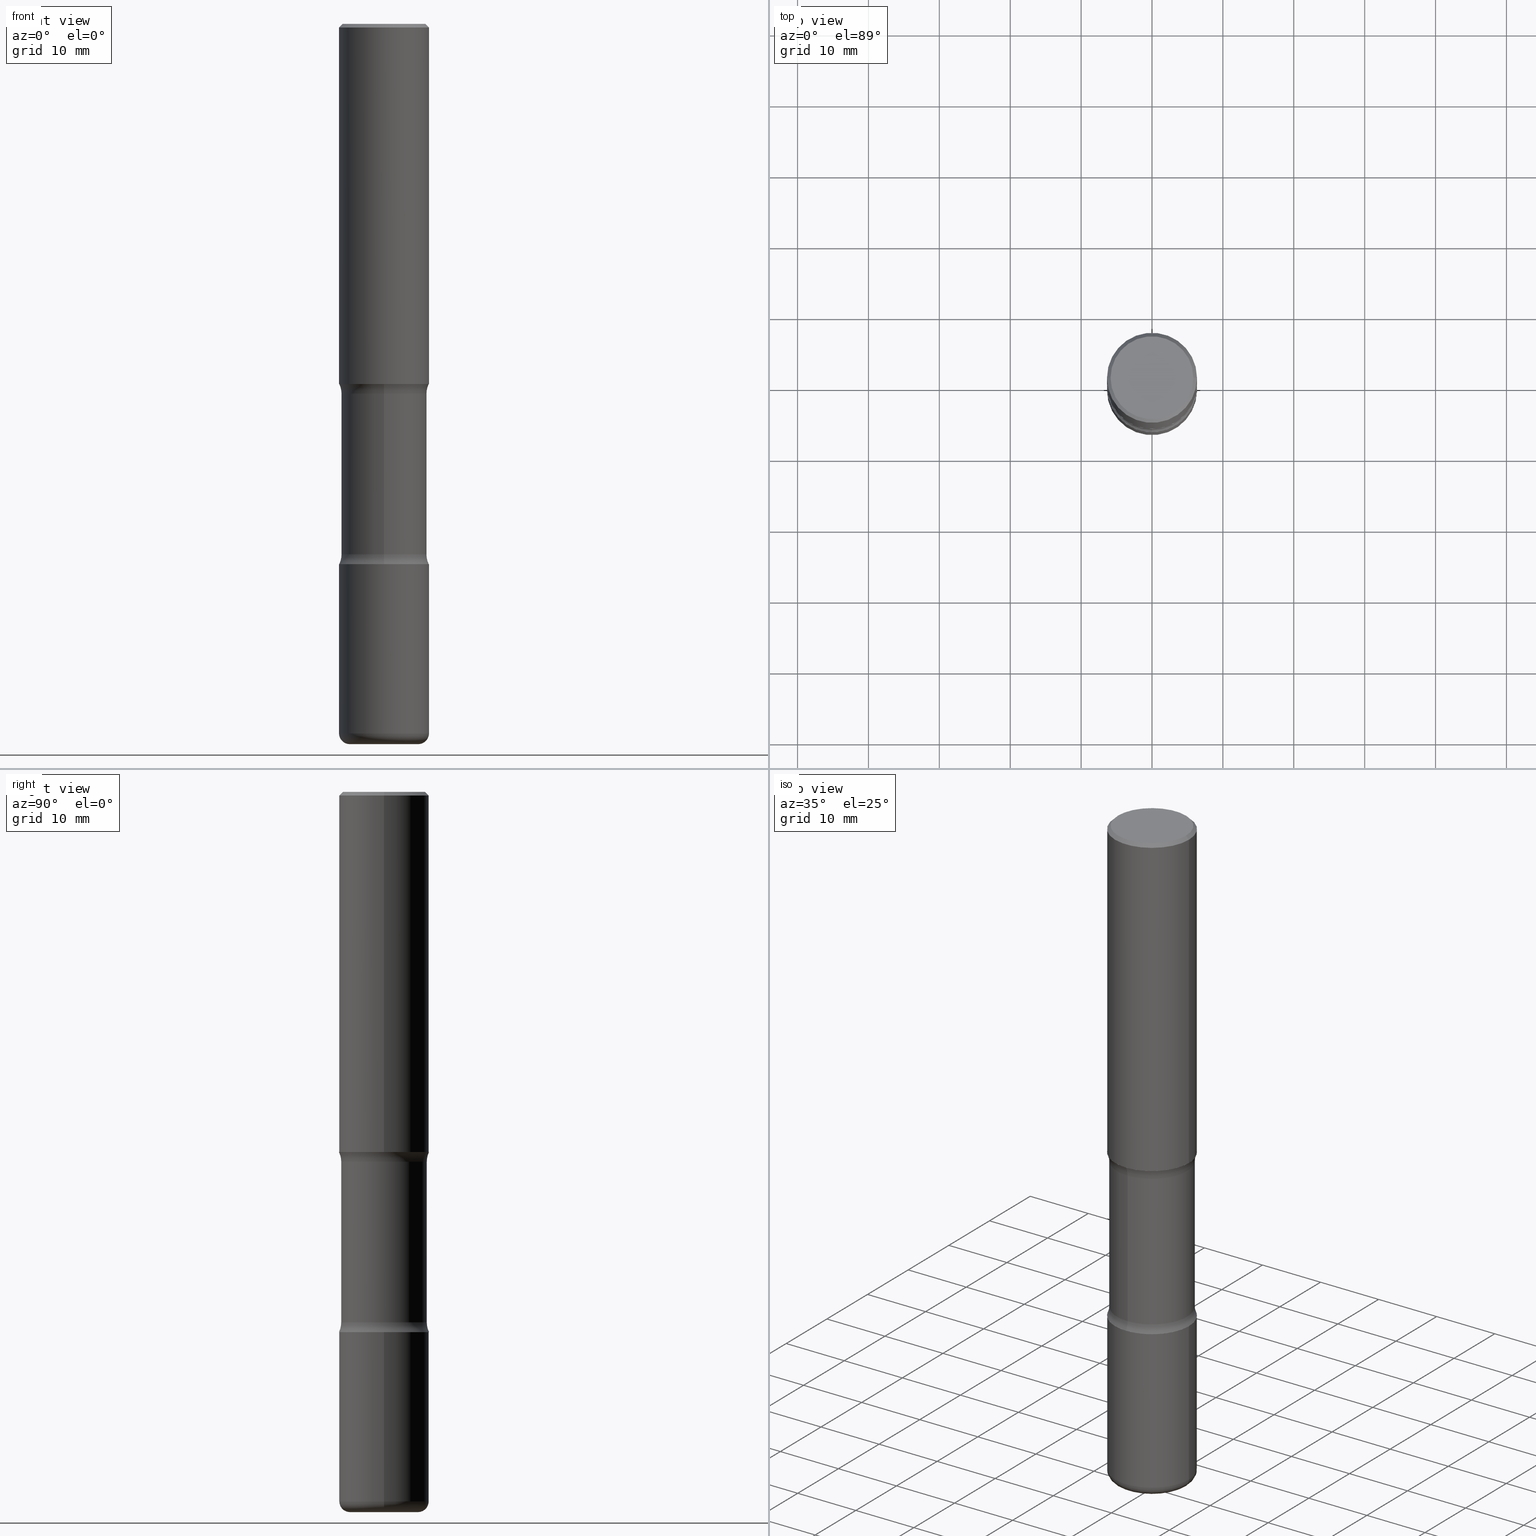
[diagram: canonical four-view strip — front | top / right | iso, engineering-drawing reading convention]
A machine part, canonical four-view strip (front | top / right | iso — engineering-drawing reading convention). The complete STEP part file that produces these views, byte-faithful:
ISO-10303-21;
HEADER;
FILE_DESCRIPTION (( 'STEP AP203' ),
    '1' );
FILE_NAME ('37883.STEP',
    '2024-03-02T01:03:27',
    ( '' ),
    ( '' ),
    'SwSTEP 2.0',
    'SolidWorks 2023',
    '' );
FILE_SCHEMA (( 'CONFIG_CONTROL_DESIGN' ));
ENDSEC;

DATA;
#1 = EDGE_LOOP ( 'NONE', ( #397, #44 ) ) ;
#2 = VERTEX_POINT ( 'NONE', #50 ) ;
#3 = DIRECTION ( 'NONE',  ( -1.000000000000000000, 7.105427357600993970E-15, 0.000000000000000000 ) ) ;
#4 = DIRECTION ( 'NONE',  ( -2.530378452311521502E-29, 3.369885892833230592E-15, 1.000000000000000000 ) ) ;
#5 = APPROVAL_STATUS ( 'not_yet_approved' ) ;
#6 = ORIENTED_EDGE ( 'NONE', *, *, #476, .T. ) ;
#7 = CARTESIAN_POINT ( 'NONE',  ( -2.486930524192130572E-15, -0.3625000000000073164, -2.054486236794257792 ) ) ;
#8 = APPLICATION_PROTOCOL_DEFINITION ( 'international standard', 'config_control_design', 1994, #106 ) ;
#9 = ORIENTED_EDGE ( 'NONE', *, *, #32, .T. ) ;
#10 = AXIS2_PLACEMENT_3D ( 'NONE', #138, #311, #219 ) ;
#11 = CC_DESIGN_PERSON_AND_ORGANIZATION_ASSIGNMENT ( #320, #220, ( #205 ) ) ;
#12 = EDGE_LOOP ( 'NONE', ( #100, #288, #249, #364 ) ) ;
#13 = ADVANCED_FACE ( 'NONE', ( #440 ), #55, .F. ) ;
#14 = CARTESIAN_POINT ( 'NONE',  ( 1.658453635950538436E-15, 0.2374999999999928557, -2.054486236794259568 ) ) ;
#15 = PERSON_AND_ORGANIZATION_ROLE ( 'creator' ) ;
#16 = ORIENTED_EDGE ( 'NONE', *, *, #387, .T. ) ;
#17 = ADVANCED_FACE ( 'NONE', ( #515 ), #193, .T. ) ;
#18 = DIRECTION ( 'NONE',  ( -1.000000000000000000, 6.982962677686265922E-15, -4.876176775795935793E-29 ) ) ;
#19 = CALENDAR_DATE ( 2024, 1, 3 ) ;
#20 = TOROIDAL_SURFACE ( 'NONE', #10, 0.3625000000000000999, 0.1250000000000000278 ) ;
#21 = DIRECTION ( 'NONE',  ( -2.445468806185136597E-29, 3.491481338843145583E-15, 1.000000000000000000 ) ) ;
#22 = AXIS2_PLACEMENT_3D ( 'NONE', #432, #42, #243 ) ;
#23 = APPROVAL ( #5, 'UNSPECIFIED' ) ;
#24 = VECTOR ( 'NONE', #101, 39.37007874015748143 ) ;
#25 = CIRCLE ( 'NONE', #328, 0.2500000000000003886 ) ;
#26 = LINE ( 'NONE', #368, #82 ) ;
#27 = DIRECTION ( 'NONE',  ( 1.000000000000000000, -6.982962677686265922E-15, 0.000000000000000000 ) ) ;
#28 = DIRECTION ( 'NONE',  ( -2.445468806185136597E-29, 3.491481338843145583E-15, 1.000000000000000000 ) ) ;
#29 = DATE_TIME_ROLE ( 'classification_date' ) ;
#30 = LENGTH_MEASURE_WITH_UNIT ( LENGTH_MEASURE( 0.02539999999999999897 ), #72 );
#31 = LINE ( 'NONE', #303, #275 ) ;
#32 = EDGE_CURVE ( 'NONE', #392, #2, #488, .T. ) ;
#33 = ADVANCED_FACE ( 'NONE', ( #301 ), #63, .T. ) ;
#34 = EDGE_CURVE ( 'NONE', #516, #555, #178, .T. ) ;
#35 = PLANE ( 'NONE',  #156 ) ;
#36 = ORIENTED_EDGE ( 'NONE', *, *, #277, .T. ) ;
#37 = AXIS2_PLACEMENT_3D ( 'NONE', #549, #388, #208 ) ;
#38 = CARTESIAN_POINT ( 'NONE',  ( -1.672246386956763723E-15, -0.2375000000000074274, -2.054486236794258236 ) ) ;
#39 = TOROIDAL_SURFACE ( 'NONE', #167, 0.3625000000000000999, 0.1250000000000000278 ) ;
#40 = PLANE ( 'NONE',  #367 ) ;
#41 = ORIENTED_EDGE ( 'NONE', *, *, #233, .T. ) ;
#42 = DIRECTION ( 'NONE',  ( -1.000000000000000000, 6.982962677686265922E-15, -4.883557194083112340E-29 ) ) ;
#43 = CARTESIAN_POINT ( 'NONE',  ( -1.715124499442836348E-15, -0.2500000000000074385, -1.999999999999999112 ) ) ;
#44 = ORIENTED_EDGE ( 'NONE', *, *, #333, .F. ) ;
#45 = ORIENTED_EDGE ( 'NONE', *, *, #439, .F. ) ;
#46 = FACE_OUTER_BOUND ( 'NONE', #272, .T. ) ;
#47 = CIRCLE ( 'NONE', #104, 0.2375000000000001277 ) ;
#48 = DIRECTION ( 'NONE',  ( 6.860497997771532351E-15, 1.000000000000000000, 0.000000000000000000 ) ) ;
#49 = CARTESIAN_POINT ( 'NONE',  ( 0.000000000000000000, 0.000000000000000000, 0.000000000000000000 ) ) ;
#50 = CARTESIAN_POINT ( 'NONE',  ( -0.2499999999999999167, 1.675911042644703182E-15, -0.02000000000000006981 ) ) ;
#51 = ORIENTED_EDGE ( 'NONE', *, *, #337, .F. ) ;
#52 = DIRECTION ( 'NONE',  ( 2.530378452311521502E-29, -3.369885892833230986E-15, -1.000000000000000000 ) ) ;
#53 = APPROVAL_DATE_TIME ( #57, #23 ) ;
#54 = ADVANCED_FACE ( 'NONE', ( #369 ), #187, .F. ) ;
#55 = PLANE ( 'NONE',  #389 ) ;
#56 = CARTESIAN_POINT ( 'NONE',  ( 9.635147096369438236E-29, -1.375643647504199401E-14, -3.939999999999999947 ) ) ;
#57 = DATE_AND_TIME ( #179, #553 ) ;
#58 = DIRECTION ( 'NONE',  ( -6.982962677686265922E-15, -1.000000000000000000, 3.369885892833230592E-15 ) ) ;
#59 = AXIS2_PLACEMENT_3D ( 'NONE', #378, #244, #376 ) ;
#60 = EDGE_LOOP ( 'NONE', ( #202, #350 ) ) ;
#61 = DIRECTION ( 'NONE',  ( 1.000000000000000000, -6.982962677686267499E-15, 4.876176775795936353E-29 ) ) ;
#62 = EDGE_CURVE ( 'NONE', #318, #436, #537, .T. ) ;
#63 = CYLINDRICAL_SURFACE ( 'NONE', #240, 0.2500000000000003331 ) ;
#64 = ADVANCED_FACE ( 'NONE', ( #455 ), #148, .T. ) ;
#65 = AXIS2_PLACEMENT_3D ( 'NONE', #308, #94, #226 ) ;
#66 =( GEOMETRIC_REPRESENTATION_CONTEXT ( 3 ) GLOBAL_UNCERTAINTY_ASSIGNED_CONTEXT ( ( #543 ) ) GLOBAL_UNIT_ASSIGNED_CONTEXT ( ( #554, #158, #117 ) ) REPRESENTATION_CONTEXT ( 'NONE', 'WORKASPACE' ) );
#67 = CARTESIAN_POINT ( 'NONE',  ( 9.635147096369438236E-29, -1.375643647504199401E-14, -3.939999999999999947 ) ) ;
#68 = DIMENSIONAL_EXPONENTS ( 1.000000000000000000, 0.000000000000000000, 0.000000000000000000, 0.000000000000000000, 0.000000000000000000, 0.000000000000000000, 0.000000000000000000 ) ;
#69 = SHAPE_DEFINITION_REPRESENTATION ( #471, #210 ) ;
#70 = PRODUCT_RELATED_PRODUCT_CATEGORY ( 'detail', '', ( #205 ) ) ;
#71 = EDGE_CURVE ( 'NONE', #464, #392, #26, .T. ) ;
#72 =( LENGTH_UNIT ( ) NAMED_UNIT ( * ) SI_UNIT ( $, .METRE. ) );
#73 = LOCAL_TIME ( 20, 3, 27.00000000000000000, #484 ) ;
#74 = DIRECTION ( 'NONE',  ( 2.530378452311521502E-29, -3.369885892833230986E-15, -1.000000000000000000 ) ) ;
#75 = ADVANCED_FACE ( 'NONE', ( #237 ), #373, .T. ) ;
#76 = ORIENTED_EDGE ( 'NONE', *, *, #292, .F. ) ;
#77 = APPROVAL ( #454, 'UNSPECIFIED' ) ;
#78 = DIRECTION ( 'NONE',  ( 2.530378452311521502E-29, -3.369885892833230592E-15, -1.000000000000000000 ) ) ;
#79 = FACE_OUTER_BOUND ( 'NONE', #1, .T. ) ;
#80 = DIRECTION ( 'NONE',  ( 2.530378452311521502E-29, -3.369885892833230986E-15, -1.000000000000000000 ) ) ;
#81 = ORIENTED_EDGE ( 'NONE', *, *, #277, .F. ) ;
#82 = VECTOR ( 'NONE', #279, 39.37007874015748143 ) ;
#83 = DIRECTION ( 'NONE',  ( 6.982962677686265133E-15, 1.000000000000000000, -2.300503573612010239E-15 ) ) ;
#84 = AXIS2_PLACEMENT_3D ( 'NONE', #270, #527, #3 ) ;
#85 = CYLINDRICAL_SURFACE ( 'NONE', #505, 0.2375000000000000999 ) ;
#86 = ORIENTED_EDGE ( 'NONE', *, *, #439, .T. ) ;
#87 = ORIENTED_EDGE ( 'NONE', *, *, #426, .F. ) ;
#88 = CARTESIAN_POINT ( 'NONE',  ( 7.336406418555409790E-29, -1.047444401652943635E-14, -3.000000000000000444 ) ) ;
#89 = ORIENTED_EDGE ( 'NONE', *, *, #266, .T. ) ;
#90 = DIRECTION ( 'NONE',  ( -1.000000000000000000, 6.982962677686265922E-15, -4.883557194083112340E-29 ) ) ;
#91 = CIRCLE ( 'NONE', #411, 0.2500000000000002776 ) ;
#92 = AXIS2_PLACEMENT_3D ( 'NONE', #265, #404, #177 ) ;
#93 = CC_DESIGN_APPROVAL ( #23, ( #169 ) ) ;
#94 = DIRECTION ( 'NONE',  ( 2.445468806185136597E-29, -3.491481338843145583E-15, -1.000000000000000000 ) ) ;
#95 = SECURITY_CLASSIFICATION_LEVEL ( 'unclassified' ) ;
#96 = ORIENTED_EDGE ( 'NONE', *, *, #271, .T. ) ;
#97 = ORIENTED_EDGE ( 'NONE', *, *, #149, .F. ) ;
#98 = DIRECTION ( 'NONE',  ( -2.445468806185136597E-29, 3.491481338843145583E-15, 1.000000000000000000 ) ) ;
#99 = CALENDAR_DATE ( 2024, 1, 3 ) ;
#100 = ORIENTED_EDGE ( 'NONE', *, *, #228, .T. ) ;
#101 = DIRECTION ( 'NONE',  ( -2.445468806185136877E-29, 3.491481338843145188E-15, 1.000000000000000000 ) ) ;
#102 = DIRECTION ( 'NONE',  ( 0.000000000000000000, 0.000000000000000000, 1.000000000000000000 ) ) ;
#103 = VECTOR ( 'NONE', #256, 39.37007874015748143 ) ;
#104 = AXIS2_PLACEMENT_3D ( 'NONE', #407, #52, #365 ) ;
#105 = CARTESIAN_POINT ( 'NONE',  ( -0.2500000000000002776, -1.033908340638546235E-14, -3.000000000000000444 ) ) ;
#106 = APPLICATION_CONTEXT ( 'configuration controlled 3d designs of mechanical parts and assemblies' ) ;
#107 = DIRECTION ( 'NONE',  ( 6.982962677686265922E-15, 1.000000000000000000, -4.370956789862816416E-15 ) ) ;
#108 = AXIS2_PLACEMENT_3D ( 'NONE', #255, #504, #379 ) ;
#109 = AXIS2_PLACEMENT_3D ( 'NONE', #547, #425, #497 ) ;
#110 = EDGE_CURVE ( 'NONE', #222, #477, #91, .T. ) ;
#111 = ADVANCED_FACE ( 'NONE', ( #153 ), #331, .F. ) ;
#112 = DIRECTION ( 'NONE',  ( -2.445468806185136597E-29, 3.491481338843145583E-15, 1.000000000000000000 ) ) ;
#113 = CARTESIAN_POINT ( 'NONE',  ( 0.1900000000000003630, -1.529268826413297711E-14, -4.000000000000000000 ) ) ;
#114 = AXIS2_PLACEMENT_3D ( 'NONE', #7, #481, #172 ) ;
#115 = SECURITY_CLASSIFICATION ( '', '', #95 ) ;
#116 = CARTESIAN_POINT ( 'NONE',  ( 4.806027966243888288E-29, -7.104558123696206156E-15, -2.000000000000000000 ) ) ;
#117 =( NAMED_UNIT ( * ) SI_UNIT ( $, .STERADIAN. ) SOLID_ANGLE_UNIT ( ) );
#118 = DIRECTION ( 'NONE',  ( -2.445468806185136597E-29, 3.491481338843145583E-15, 1.000000000000000000 ) ) ;
#119 = ORIENTED_EDGE ( 'NONE', *, *, #62, .F. ) ;
#120 = ORIENTED_EDGE ( 'NONE', *, *, #204, .F. ) ;
#121 = DIRECTION ( 'NONE',  ( 6.982962677686265922E-15, 1.000000000000000000, -3.369885892833230986E-15 ) ) ;
#122 = VERTEX_POINT ( 'NONE', #532 ) ;
#123 = CIRCLE ( 'NONE', #22, 0.1250000000000000278 ) ;
#124 = CARTESIAN_POINT ( 'NONE',  ( 0.1900000000000003630, -1.508319938380238721E-14, -3.939999999999999947 ) ) ;
#125 = AXIS2_PLACEMENT_3D ( 'NONE', #338, #118, #296 ) ;
#126 = ORIENTED_EDGE ( 'NONE', *, *, #228, .F. ) ;
#127 = CARTESIAN_POINT ( 'NONE',  ( -0.2500000000000003331, 1.776356839400252831E-15, -1.229733772563727987E-29 ) ) ;
#128 = ORIENTED_EDGE ( 'NONE', *, *, #370, .T. ) ;
#129 = CARTESIAN_POINT ( 'NONE',  ( 9.781875224740546387E-29, -1.396592535537258233E-14, -4.000000000000000000 ) ) ;
#130 = DIRECTION ( 'NONE',  ( 6.982962677686265922E-15, 1.000000000000000000, -3.369885892833230592E-15 ) ) ;
#131 = CARTESIAN_POINT ( 'NONE',  ( 7.336406418555409790E-29, -1.047444401652943635E-14, -3.000000000000000444 ) ) ;
#132 = MANIFOLD_SOLID_BREP ( 'Body-Move/Copy2[1]', #309 ) ;
#133 = ADVANCED_FACE ( 'NONE', ( #324 ), #422, .T. ) ;
#134 = DIRECTION ( 'NONE',  ( -6.982962677686266711E-15, -1.000000000000000000, 0.000000000000000000 ) ) ;
#135 = AXIS2_PLACEMENT_3D ( 'NONE', #470, #201, #334 ) ;
#136 = CC_DESIGN_APPROVAL ( #330, ( #234 ) ) ;
#137 = ORIENTED_EDGE ( 'NONE', *, *, #164, .T. ) ;
#138 = CARTESIAN_POINT ( 'NONE',  ( 7.203162026108633562E-29, -1.028420633753849345E-14, -2.945513763205741320 ) ) ;
#139 = PERSON_AND_ORGANIZATION ( #161, #429 ) ;
#140 = CARTESIAN_POINT ( 'NONE',  ( 0.2500000000000003331, -1.550217714446356385E-14, -3.939999999999999947 ) ) ;
#141 = DIRECTION ( 'NONE',  ( -2.445468806185136597E-29, 3.491481338843145583E-15, 1.000000000000000000 ) ) ;
#142 = CIRCLE ( 'NONE', #456, 0.2375000000000000722 ) ;
#143 = APPROVAL_PERSON_ORGANIZATION ( #363, #330, #267 ) ;
#144 = CARTESIAN_POINT ( 'NONE',  ( 7.336406418555409790E-29, -1.047444401652943635E-14, -3.000000000000000444 ) ) ;
#145 = CARTESIAN_POINT ( 'NONE',  ( 7.198535619023675570E-29, -1.029083161580289368E-14, -2.945513763205741320 ) ) ;
#146 = PERSON_AND_ORGANIZATION ( #161, #429 ) ;
#147 = CARTESIAN_POINT ( 'NONE',  ( 1.606081415867840476E-15, 0.2299999999999998990, -8.030407079339231961E-16 ) ) ;
#148 = CYLINDRICAL_SURFACE ( 'NONE', #381, 0.2375000000000000999 ) ;
#149 = EDGE_CURVE ( 'NONE', #122, #2, #300, .T. ) ;
#150 = AXIS2_PLACEMENT_3D ( 'NONE', #556, #468, #466 ) ;
#151 = CIRCLE ( 'NONE', #200, 0.2500000000000002776 ) ;
#152 = DIRECTION ( 'NONE',  ( 2.438088387897960049E-29, -3.491481338843145188E-15, -1.000000000000000000 ) ) ;
#153 = FACE_OUTER_BOUND ( 'NONE', #60, .T. ) ;
#154 = VERTEX_POINT ( 'NONE', #385 ) ;
#155 = CARTESIAN_POINT ( 'NONE',  ( -0.2500000000000000555, 1.776356839400250859E-15, -1.229733772563726866E-29 ) ) ;
#156 = AXIS2_PLACEMENT_3D ( 'NONE', #340, #500, #130 ) ;
#157 = DIRECTION ( 'NONE',  ( -2.445468806185136877E-29, 3.491481338843145188E-15, 1.000000000000000000 ) ) ;
#158 =( NAMED_UNIT ( * ) PLANE_ANGLE_UNIT ( ) SI_UNIT ( $, .RADIAN. ) );
#159 = ORIENTED_EDGE ( 'NONE', *, *, #525, .T. ) ;
#160 = DIRECTION ( 'NONE',  ( 1.000000000000000000, -6.982962677686270655E-15, 0.000000000000000000 ) ) ;
#161 = PERSON ( 'UNSPECIFIED', 'UNSPECIFIED', 'UNSPECIFIED', ('UNSPECIFIED'), ('UNSPECIFIED'), ('UNSPECIFIED') ) ;
#162 = ORIENTED_EDGE ( 'NONE', *, *, #315, .F. ) ;
#163 = EDGE_CURVE ( 'NONE', #174, #302, #492, .T. ) ;
#164 = EDGE_CURVE ( 'NONE', #555, #353, #479, .T. ) ;
#165 = CARTESIAN_POINT ( 'NONE',  ( 0.2500000000000002776, -1.222018468595100619E-14, -3.000000000000000444 ) ) ;
#166 = ORIENTED_EDGE ( 'NONE', *, *, #266, .F. ) ;
#167 = AXIS2_PLACEMENT_3D ( 'NONE', #485, #398, #524 ) ;
#168 = DIRECTION ( 'NONE',  ( 6.982962677686265922E-15, 1.000000000000000000, -3.369885892833230986E-15 ) ) ;
#169 = PRODUCT_DEFINITION_FORMATION_WITH_SPECIFIED_SOURCE ( 'ANY', '', #205, .NOT_KNOWN. ) ;
#170 = EDGE_LOOP ( 'NONE', ( #550, #51, #482, #36 ) ) ;
#171 = ORIENTED_EDGE ( 'NONE', *, *, #316, .T. ) ;
#172 = DIRECTION ( 'NONE',  ( 6.860497997771529985E-15, 1.000000000000000000, 0.000000000000000000 ) ) ;
#173 = APPLICATION_PROTOCOL_DEFINITION ( 'international standard', 'config_control_design', 1994, #423 ) ;
#174 = VERTEX_POINT ( 'NONE', #38 ) ;
#175 = CARTESIAN_POINT ( 'NONE',  ( 4.806027966243888288E-29, -7.104558123696206156E-15, -2.000000000000000000 ) ) ;
#176 = ORIENTED_EDGE ( 'NONE', *, *, #71, .T. ) ;
#177 = DIRECTION ( 'NONE',  ( 1.000000000000000000, -6.982962677686269077E-15, 4.883557194083113462E-29 ) ) ;
#178 = CIRCLE ( 'NONE', #402, 0.1900000000000003630 ) ;
#179 = CALENDAR_DATE ( 2024, 1, 3 ) ;
#180 = CIRCLE ( 'NONE', #463, 0.2500000000000001665 ) ;
#181 = DIRECTION ( 'NONE',  ( -2.445468806185136597E-29, 3.491481338843145583E-15, 1.000000000000000000 ) ) ;
#182 = EDGE_LOOP ( 'NONE', ( #306, #548 ) ) ;
#183 = CARTESIAN_POINT ( 'NONE',  ( 0.2500000000000003331, -1.745740669421569044E-15, 1.219044193948985630E-29 ) ) ;
#184 = PERSON_AND_ORGANIZATION ( #161, #429 ) ;
#185 = ORIENTED_EDGE ( 'NONE', *, *, #333, .T. ) ;
#186 = CARTESIAN_POINT ( 'NONE',  ( 0.2499999999999999167, -1.784954126219745400E-15, -0.02000000000000006981 ) ) ;
#187 = PLANE ( 'NONE',  #506 ) ;
#188 = AXIS2_PLACEMENT_3D ( 'NONE', #541, #494, #232 ) ;
#189 = AXIS2_PLACEMENT_3D ( 'NONE', #427, #80, #168 ) ;
#190 = CARTESIAN_POINT ( 'NONE',  ( 0.000000000000000000, 0.000000000000000000, 0.000000000000000000 ) ) ;
#191 = DIRECTION ( 'NONE',  ( 1.000000000000000000, -6.982962677686266711E-15, 4.876176775795935793E-29 ) ) ;
#192 = DIRECTION ( 'NONE',  ( 2.530378452311521502E-29, -3.369885892833230986E-15, -1.000000000000000000 ) ) ;
#193 = CONICAL_SURFACE ( 'NONE', #65, 0.2499999999999999167, 0.7853981633974472798 ) ;
#194 = AXIS2_PLACEMENT_3D ( 'NONE', #473, #141, #442 ) ;
#195 = DIRECTION ( 'NONE',  ( 1.000000000000000000, -6.982962677686267499E-15, 4.876176775795935793E-29 ) ) ;
#196 = EDGE_CURVE ( 'NONE', #477, #222, #285, .T. ) ;
#197 = DIRECTION ( 'NONE',  ( -6.982962677686266711E-15, -1.000000000000000000, 3.491481338843145583E-15 ) ) ;
#198 = FACE_OUTER_BOUND ( 'NONE', #290, .T. ) ;
#199 = FACE_OUTER_BOUND ( 'NONE', #448, .T. ) ;
#200 = AXIS2_PLACEMENT_3D ( 'NONE', #88, #213, #274 ) ;
#201 = DIRECTION ( 'NONE',  ( 2.445468806185136597E-29, -3.491481338843145583E-15, -1.000000000000000000 ) ) ;
#202 = ORIENTED_EDGE ( 'NONE', *, *, #110, .T. ) ;
#203 = ADVANCED_FACE ( 'NONE', ( #386 ), #235, .T. ) ;
#204 = EDGE_CURVE ( 'NONE', #154, #509, #142, .T. ) ;
#205 = PRODUCT ( '37883', '37883', '', ( #450 ) ) ;
#206 = EDGE_LOOP ( 'NONE', ( #229, #511, #96, #120 ) ) ;
#207 = DESIGN_CONTEXT ( 'detailed design', #106, 'design' ) ;
#208 = DIRECTION ( 'NONE',  ( 1.000000000000000000, -6.982962677686270655E-15, 0.000000000000000000 ) ) ;
#209 = EDGE_CURVE ( 'NONE', #480, #2, #31, .T. ) ;
#210 = ADVANCED_BREP_SHAPE_REPRESENTATION ( '37883', ( #132, #327, #501, #493 ), #66 ) ;
#211 = ORIENTED_EDGE ( 'NONE', *, *, #62, .T. ) ;
#212 = AXIS2_PLACEMENT_3D ( 'NONE', #175, #513, #307 ) ;
#213 = DIRECTION ( 'NONE',  ( 2.530378452311521502E-29, -3.369885892833230986E-15, -1.000000000000000000 ) ) ;
#214 = CC_DESIGN_DATE_AND_TIME_ASSIGNMENT ( #459, #29, ( #115 ) ) ;
#215 = ORIENTED_EDGE ( 'NONE', *, *, #433, .F. ) ;
#216 = ORIENTED_EDGE ( 'NONE', *, *, #370, .F. ) ;
#217 = DIRECTION ( 'NONE',  ( -2.445468806185136597E-29, 3.491481338843145583E-15, 1.000000000000000000 ) ) ;
#218 = ORIENTED_EDGE ( 'NONE', *, *, #420, .T. ) ;
#219 = DIRECTION ( 'NONE',  ( 6.982962677686265922E-15, 1.000000000000000000, -3.369885892833230986E-15 ) ) ;
#220 = PERSON_AND_ORGANIZATION_ROLE ( 'design_owner' ) ;
#221 = CARTESIAN_POINT ( 'NONE',  ( 4.890937612370289799E-31, -6.982962677686315028E-17, -0.02000000000000006981 ) ) ;
#222 = VERTEX_POINT ( 'NONE', #165 ) ;
#223 = CARTESIAN_POINT ( 'NONE',  ( 1.745740669421641422E-15, 0.2499999999999897582, -3.000000000000000888 ) ) ;
#224 = CIRCLE ( 'NONE', #322, 0.1900000000000003630 ) ;
#225 = CC_DESIGN_APPROVAL ( #77, ( #115 ) ) ;
#226 = DIRECTION ( 'NONE',  ( -1.000000000000000000, 6.982962677686267499E-15, 0.000000000000000000 ) ) ;
#227 = DIRECTION ( 'NONE',  ( 6.982962677686265133E-15, 1.000000000000000000, -2.300503573612010239E-15 ) ) ;
#228 = EDGE_CURVE ( 'NONE', #353, #344, #357, .T. ) ;
#229 = ORIENTED_EDGE ( 'NONE', *, *, #316, .F. ) ;
#230 = ADVANCED_FACE ( 'NONE', ( #250 ), #85, .T. ) ;
#231 = FACE_OUTER_BOUND ( 'NONE', #451, .T. ) ;
#232 = DIRECTION ( 'NONE',  ( 1.000000000000000000, -6.982962677686266711E-15, 4.876176775795935793E-29 ) ) ;
#233 = EDGE_CURVE ( 'NONE', #436, #509, #123, .T. ) ;
#234 = PRODUCT_DEFINITION ( 'UNKNOWN', '', #169, #207 ) ;
#235 = CONICAL_SURFACE ( 'NONE', #135, 0.2499999999999999167, 0.7853981633974472798 ) ;
#236 = AXIS2_PLACEMENT_3D ( 'NONE', #453, #449, #61 ) ;
#237 = FACE_OUTER_BOUND ( 'NONE', #12, .T. ) ;
#238 = CYLINDRICAL_SURFACE ( 'NONE', #412, 0.2500000000000000555 ) ;
#239 = PERSON_AND_ORGANIZATION ( #161, #429 ) ;
#240 = AXIS2_PLACEMENT_3D ( 'NONE', #190, #321, #191 ) ;
#241 = APPROVAL_PERSON_ORGANIZATION ( #239, #77, #495 ) ;
#242 = EDGE_CURVE ( 'NONE', #344, #477, #498, .T. ) ;
#243 = DIRECTION ( 'NONE',  ( -6.982962677686265133E-15, -1.000000000000000000, 0.000000000000000000 ) ) ;
#244 = DIRECTION ( 'NONE',  ( -2.445468806185136597E-29, 3.491481338843145583E-15, 1.000000000000000000 ) ) ;
#245 = VERTEX_POINT ( 'NONE', #43 ) ;
#246 = CARTESIAN_POINT ( 'NONE',  ( 9.635147096369438236E-29, -1.375643647504199401E-14, -3.939999999999999947 ) ) ;
#247 = EDGE_LOOP ( 'NONE', ( #128, #211 ) ) ;
#248 = CARTESIAN_POINT ( 'NONE',  ( 4.890937612370273194E-29, -6.982962677686291165E-15, -2.000000000000000000 ) ) ;
#249 = ORIENTED_EDGE ( 'NONE', *, *, #110, .F. ) ;
#250 = FACE_OUTER_BOUND ( 'NONE', #206, .T. ) ;
#251 = ADVANCED_FACE ( 'NONE', ( #502 ), #559, .F. ) ;
#252 = CARTESIAN_POINT ( 'NONE',  ( 0.2500000000000000555, -1.745740669421567269E-15, 1.219044193948984228E-29 ) ) ;
#253 = ORIENTED_EDGE ( 'NONE', *, *, #271, .F. ) ;
#254 = VECTOR ( 'NONE', #78, 39.37007874015748143 ) ;
#255 = CARTESIAN_POINT ( 'NONE',  ( 0.000000000000000000, 0.000000000000000000, 0.000000000000000000 ) ) ;
#256 = DIRECTION ( 'NONE',  ( -2.445468806185136877E-29, 3.491481338843145188E-15, 1.000000000000000000 ) ) ;
#257 = EDGE_LOOP ( 'NONE', ( #269, #437, #401, #406 ) ) ;
#258 = CARTESIAN_POINT ( 'NONE',  ( -1.629368274470640415E-15, -0.2375000000000139222, -3.999999999999999556 ) ) ;
#259 = ORIENTED_EDGE ( 'NONE', *, *, #204, .T. ) ;
#260 = EDGE_LOOP ( 'NONE', ( #218, #171, #452, #253 ) ) ;
#261 = VECTOR ( 'NONE', #157, 39.37007874015748143 ) ;
#262 = TOROIDAL_SURFACE ( 'NONE', #345, 0.1900000000000003630, 0.05999999999999995615 ) ;
#263 = CARTESIAN_POINT ( 'NONE',  ( 1.745740669421617165E-15, 0.2499999999999933109, -2.000000000000000888 ) ) ;
#264 = CALENDAR_DATE ( 2024, 1, 3 ) ;
#265 = CARTESIAN_POINT ( 'NONE',  ( 9.635147096369438236E-29, -1.375643647504199401E-14, -3.939999999999999947 ) ) ;
#266 = EDGE_CURVE ( 'NONE', #245, #297, #25, .T. ) ;
#267 = APPROVAL_ROLE ( '' ) ;
#268 = ORIENTED_EDGE ( 'NONE', *, *, #337, .T. ) ;
#269 = ORIENTED_EDGE ( 'NONE', *, *, #242, .F. ) ;
#270 = CARTESIAN_POINT ( 'NONE',  ( -0.1900000000000003630, -1.240640527709780088E-14, -3.939999999999999947 ) ) ;
#271 = EDGE_CURVE ( 'NONE', #302, #509, #287, .T. ) ;
#272 = EDGE_LOOP ( 'NONE', ( #475, #216, #41, #6 ) ) ;
#273 = ADVANCED_FACE ( 'NONE', ( #198 ), #520, .F. ) ;
#274 = DIRECTION ( 'NONE',  ( 6.982962677686265922E-15, 1.000000000000000000, -4.370956789862816416E-15 ) ) ;
#275 = VECTOR ( 'NONE', #435, 39.37007874015748143 ) ;
#276 = DIRECTION ( 'NONE',  ( 1.000000000000000000, 0.000000000000000000, 0.000000000000000000 ) ) ;
#277 = EDGE_CURVE ( 'NONE', #2, #392, #560, .T. ) ;
#278 = ADVANCED_FACE ( 'NONE', ( #231 ), #39, .F. ) ;
#279 = DIRECTION ( 'NONE',  ( 0.7071067811865467956, -7.319954787623254468E-15, -0.7071067811865482389 ) ) ;
#280 = CIRCLE ( 'NONE', #194, 0.2500000000000001665 ) ;
#281 = CARTESIAN_POINT ( 'NONE',  ( 9.866784870866931853E-29, -1.384432990936266734E-14, -4.000000000000000000 ) ) ;
#282 = DIRECTION ( 'NONE',  ( 2.438088387897960049E-29, -3.491481338843145188E-15, -1.000000000000000000 ) ) ;
#283 = ADVANCED_FACE ( 'NONE', ( #46 ), #20, .F. ) ;
#284 = DIRECTION ( 'NONE',  ( -1.000000000000000000, 6.982962677686265922E-15, -4.876176775795935793E-29 ) ) ;
#285 = CIRCLE ( 'NONE', #37, 0.2500000000000002776 ) ;
#286 = CIRCLE ( 'NONE', #84, 0.05999999999999997696 ) ;
#287 = LINE ( 'NONE', #465, #254 ) ;
#288 = ORIENTED_EDGE ( 'NONE', *, *, #242, .T. ) ;
#289 = CARTESIAN_POINT ( 'NONE',  ( -0.1900000000000003630, -1.229798689653506559E-14, -4.000000000000000000 ) ) ;
#290 = EDGE_LOOP ( 'NONE', ( #526, #400, #89, #45 ) ) ;
#291 = CC_DESIGN_PERSON_AND_ORGANIZATION_ASSIGNMENT ( #360, #317, ( #115 ) ) ;
#292 = EDGE_CURVE ( 'NONE', #516, #344, #286, .T. ) ;
#293 = DIRECTION ( 'NONE',  ( 6.982962677686265133E-15, 1.000000000000000000, -2.300503573612010239E-15 ) ) ;
#294 = ORIENTED_EDGE ( 'NONE', *, *, #34, .T. ) ;
#295 = FACE_OUTER_BOUND ( 'NONE', #304, .T. ) ;
#296 = DIRECTION ( 'NONE',  ( 1.000000000000000000, -6.982962677686267499E-15, 0.000000000000000000 ) ) ;
#297 = VERTEX_POINT ( 'NONE', #263 ) ;
#298 = ORIENTED_EDGE ( 'NONE', *, *, #490, .T. ) ;
#299 = AXIS2_PLACEMENT_3D ( 'NONE', #380, #551, #121 ) ;
#300 = LINE ( 'NONE', #155, #261 ) ;
#301 = FACE_OUTER_BOUND ( 'NONE', #257, .T. ) ;
#302 = VERTEX_POINT ( 'NONE', #14 ) ;
#303 = CARTESIAN_POINT ( 'NONE',  ( -0.2499999999999999167, 1.675911042644703182E-15, -0.02000000000000006981 ) ) ;
#304 = EDGE_LOOP ( 'NONE', ( #97, #185, #159, #81 ) ) ;
#305 = CC_DESIGN_PERSON_AND_ORGANIZATION_ASSIGNMENT ( #146, #325, ( #234 ) ) ;
#306 = ORIENTED_EDGE ( 'NONE', *, *, #434, .F. ) ;
#307 = DIRECTION ( 'NONE',  ( 6.982962677686265133E-15, 1.000000000000000000, -3.278217592397110735E-15 ) ) ;
#308 = CARTESIAN_POINT ( 'NONE',  ( 4.890937612370289799E-31, -6.982962677686315028E-17, -0.02000000000000006981 ) ) ;
#309 = CLOSED_SHELL ( 'NONE', ( #75, #443, #531, #474, #33, #111 ) ) ;
#310 = CIRCLE ( 'NONE', #59, 0.2299999999999998990 ) ;
#311 = DIRECTION ( 'NONE',  ( 2.530378452311521502E-29, -3.369885892833230986E-15, -1.000000000000000000 ) ) ;
#312 = PERSON_AND_ORGANIZATION_ROLE ( 'design_supplier' ) ;
#313 = EDGE_LOOP ( 'NONE', ( #268, #512 ) ) ;
#314 = FACE_OUTER_BOUND ( 'NONE', #384, .T. ) ;
#315 = EDGE_CURVE ( 'NONE', #174, #245, #469, .T. ) ;
#316 = EDGE_CURVE ( 'NONE', #174, #154, #393, .T. ) ;
#317 = PERSON_AND_ORGANIZATION_ROLE ( 'classification_officer' ) ;
#318 = VERTEX_POINT ( 'NONE', #354 ) ;
#319 = DIRECTION ( 'NONE',  ( 1.000000000000000000, -6.982962677686267499E-15, 0.000000000000000000 ) ) ;
#320 = PERSON_AND_ORGANIZATION ( #161, #429 ) ;
#321 = DIRECTION ( 'NONE',  ( -2.445468806185136597E-29, 3.491481338843145583E-15, 1.000000000000000000 ) ) ;
#322 = AXIS2_PLACEMENT_3D ( 'NONE', #129, #98, #517 ) ;
#323 = CC_DESIGN_PERSON_AND_ORGANIZATION_ASSIGNMENT ( #184, #312, ( #169 ) ) ;
#324 = FACE_OUTER_BOUND ( 'NONE', #419, .T. ) ;
#325 = PERSON_AND_ORGANIZATION_ROLE ( 'creator' ) ;
#326 = DIRECTION ( 'NONE',  ( 2.530378452311521502E-29, -3.369885892833230986E-15, -1.000000000000000000 ) ) ;
#327 = MANIFOLD_SOLID_BREP ( 'Body-Move/Copy2[2]', #343 ) ;
#328 = AXIS2_PLACEMENT_3D ( 'NONE', #116, #348, #421 ) ;
#329 = DIRECTION ( 'NONE',  ( 2.530378452311521502E-29, -3.369885892833230986E-15, -1.000000000000000000 ) ) ;
#330 = APPROVAL ( #486, 'UNSPECIFIED' ) ;
#331 = PLANE ( 'NONE',  #374 ) ;
#332 = PLANE ( 'NONE',  #109 ) ;
#333 = EDGE_CURVE ( 'NONE', #122, #445, #280, .T. ) ;
#334 = DIRECTION ( 'NONE',  ( -1.000000000000000000, 6.982962677686267499E-15, 0.000000000000000000 ) ) ;
#335 = AXIS2_PLACEMENT_3D ( 'NONE', #124, #197, #160 ) ;
#336 = AXIS2_PLACEMENT_3D ( 'NONE', #56, #217, #319 ) ;
#337 = EDGE_CURVE ( 'NONE', #480, #464, #507, .T. ) ;
#338 = CARTESIAN_POINT ( 'NONE',  ( 4.890937612370289799E-31, -6.982962677686315028E-17, -0.02000000000000006981 ) ) ;
#339 = EDGE_LOOP ( 'NONE', ( #76, #294, #137, #87 ) ) ;
#340 = CARTESIAN_POINT ( 'NONE',  ( 4.890937612370273194E-29, -6.982962677686291165E-15, -2.000000000000000000 ) ) ;
#341 = DIRECTION ( 'NONE',  ( 1.000000000000000000, -6.982962677686267499E-15, 0.000000000000000000 ) ) ;
#342 = DIRECTION ( 'NONE',  ( 2.530378452311521502E-29, -3.369885892833230986E-15, -1.000000000000000000 ) ) ;
#343 = CLOSED_SHELL ( 'NONE', ( #133, #203, #17, #54, #535, #487 ) ) ;
#344 = VERTEX_POINT ( 'NONE', #438 ) ;
#345 = AXIS2_PLACEMENT_3D ( 'NONE', #67, #372, #538 ) ;
#346 = EDGE_LOOP ( 'NONE', ( #162, #390, #86, #546 ) ) ;
#347 = CIRCLE ( 'NONE', #336, 0.2500000000000003886 ) ;
#348 = DIRECTION ( 'NONE',  ( 2.530378452311521502E-29, -3.369885892833230986E-15, -1.000000000000000000 ) ) ;
#349 = ORIENTED_EDGE ( 'NONE', *, *, #149, .T. ) ;
#350 = ORIENTED_EDGE ( 'NONE', *, *, #196, .T. ) ;
#351 = CARTESIAN_POINT ( 'NONE',  ( -2.486930524192108484E-15, -0.3625000000000104250, -2.945513763205740432 ) ) ;
#352 = DIRECTION ( 'NONE',  ( -2.445468806185136877E-29, 3.491481338843145188E-15, 1.000000000000000000 ) ) ;
#353 = VERTEX_POINT ( 'NONE', #140 ) ;
#354 = CARTESIAN_POINT ( 'NONE',  ( -1.715124499442811104E-15, -0.2500000000000107692, -2.999999999999999556 ) ) ;
#355 = DATE_TIME_ROLE ( 'creation_date' ) ;
#356 = ORIENTED_EDGE ( 'NONE', *, *, #434, .T. ) ;
#357 = CIRCLE ( 'NONE', #428, 0.2500000000000003886 ) ;
#358 = AXIS2_PLACEMENT_3D ( 'NONE', #351, #521, #48 ) ;
#359 = CARTESIAN_POINT ( 'NONE',  ( 0.2500000000000001665, -8.728703347107858632E-15, -2.000000000000000000 ) ) ;
#360 = PERSON_AND_ORGANIZATION ( #161, #429 ) ;
#361 = ORIENTED_EDGE ( 'NONE', *, *, #525, .F. ) ;
#362 = LINE ( 'NONE', #183, #24 ) ;
#363 = PERSON_AND_ORGANIZATION ( #161, #429 ) ;
#364 = ORIENTED_EDGE ( 'NONE', *, *, #458, .F. ) ;
#365 = DIRECTION ( 'NONE',  ( 6.982962677686265133E-15, 1.000000000000000000, -3.450755360418014766E-15 ) ) ;
#366 = AXIS2_PLACEMENT_3D ( 'NONE', #144, #326, #107 ) ;
#367 = AXIS2_PLACEMENT_3D ( 'NONE', #542, #152, #284 ) ;
#368 = CARTESIAN_POINT ( 'NONE',  ( 0.2499999999999999167, -1.784954126219745400E-15, -0.02000000000000006981 ) ) ;
#369 = FACE_OUTER_BOUND ( 'NONE', #313, .T. ) ;
#370 = EDGE_CURVE ( 'NONE', #436, #318, #151, .T. ) ;
#371 = CARTESIAN_POINT ( 'NONE',  ( 9.781875224740546387E-29, -1.396592535537258233E-14, -4.000000000000000000 ) ) ;
#372 = DIRECTION ( 'NONE',  ( -2.445468806185136597E-29, 3.491481338843145583E-15, 1.000000000000000000 ) ) ;
#373 = CYLINDRICAL_SURFACE ( 'NONE', #188, 0.2500000000000003331 ) ;
#374 = AXIS2_PLACEMENT_3D ( 'NONE', #462, #409, #18 ) ;
#375 = VECTOR ( 'NONE', #352, 39.37007874015748143 ) ;
#376 = DIRECTION ( 'NONE',  ( 1.000000000000000000, -6.982962677686267499E-15, 4.876176775795936353E-29 ) ) ;
#377 = DIRECTION ( 'NONE',  ( -2.445468806185136597E-29, 3.491481338843145583E-15, 1.000000000000000000 ) ) ;
#378 = CARTESIAN_POINT ( 'NONE',  ( 0.000000000000000000, 0.000000000000000000, 0.000000000000000000 ) ) ;
#379 = DIRECTION ( 'NONE',  ( 1.000000000000000000, -6.982962677686267499E-15, 4.876176775795935793E-29 ) ) ;
#380 = CARTESIAN_POINT ( 'NONE',  ( 4.976491023364875751E-29, -7.241496556518841686E-15, -2.054486236794258680 ) ) ;
#381 = AXIS2_PLACEMENT_3D ( 'NONE', #281, #192, #227 ) ;
#382 = CIRCLE ( 'NONE', #552, 0.1250000000000000000 ) ;
#383 = ORIENTED_EDGE ( 'NONE', *, *, #164, .F. ) ;
#384 = EDGE_LOOP ( 'NONE', ( #356, #431, #126, #383 ) ) ;
#385 = CARTESIAN_POINT ( 'NONE',  ( -1.672246386956739071E-15, -0.2375000000000103417, -2.945513763205740876 ) ) ;
#386 = FACE_OUTER_BOUND ( 'NONE', #557, .T. ) ;
#387 = EDGE_CURVE ( 'NONE', #318, #154, #403, .T. ) ;
#388 = DIRECTION ( 'NONE',  ( -2.445468806185136597E-29, 3.491481338843145583E-15, 1.000000000000000000 ) ) ;
#389 = AXIS2_PLACEMENT_3D ( 'NONE', #131, #4, #58 ) ;
#390 = ORIENTED_EDGE ( 'NONE', *, *, #420, .F. ) ;
#391 = DIRECTION ( 'NONE',  ( 2.530378452311521502E-29, -3.369885892833230592E-15, -1.000000000000000000 ) ) ;
#392 = VERTEX_POINT ( 'NONE', #186 ) ;
#393 = LINE ( 'NONE', #258, #418 ) ;
#394 = COORDINATED_UNIVERSAL_TIME_OFFSET ( 5, 0, .BEHIND. ) ;
#395 = CC_DESIGN_PERSON_AND_ORGANIZATION_ASSIGNMENT ( #405, #15, ( #169 ) ) ;
#396 = ORIENTED_EDGE ( 'NONE', *, *, #32, .F. ) ;
#397 = ORIENTED_EDGE ( 'NONE', *, *, #490, .F. ) ;
#398 = DIRECTION ( 'NONE',  ( 2.530378452311521502E-29, -3.369885892833230986E-15, -1.000000000000000000 ) ) ;
#399 = COORDINATED_UNIVERSAL_TIME_OFFSET ( 5, 0, .BEHIND. ) ;
#400 = ORIENTED_EDGE ( 'NONE', *, *, #315, .T. ) ;
#401 = ORIENTED_EDGE ( 'NONE', *, *, #458, .T. ) ;
#402 = AXIS2_PLACEMENT_3D ( 'NONE', #371, #536, #534 ) ;
#403 = CIRCLE ( 'NONE', #358, 0.1250000000000000278 ) ;
#404 = DIRECTION ( 'NONE',  ( -2.445468806185136597E-29, 3.491481338843145583E-15, 1.000000000000000000 ) ) ;
#405 = PERSON_AND_ORGANIZATION ( #161, #429 ) ;
#406 = ORIENTED_EDGE ( 'NONE', *, *, #196, .F. ) ;
#407 = CARTESIAN_POINT ( 'NONE',  ( 4.943898765775623630E-29, -7.288170524422749615E-15, -2.054486236794258680 ) ) ;
#408 = CC_DESIGN_DATE_AND_TIME_ASSIGNMENT ( #444, #355, ( #234 ) ) ;
#409 = DIRECTION ( 'NONE',  ( 2.438088387897960049E-29, -3.491481338843145188E-15, -1.000000000000000000 ) ) ;
#410 = COORDINATED_UNIVERSAL_TIME_OFFSET ( 5, 0, .BEHIND. ) ;
#411 = AXIS2_PLACEMENT_3D ( 'NONE', #416, #377, #544 ) ;
#412 = AXIS2_PLACEMENT_3D ( 'NONE', #415, #112, #195 ) ;
#413 = CC_DESIGN_SECURITY_CLASSIFICATION ( #115, ( #169 ) ) ;
#414 = CALENDAR_DATE ( 2024, 1, 3 ) ;
#415 = CARTESIAN_POINT ( 'NONE',  ( 0.000000000000000000, 0.000000000000000000, 0.000000000000000000 ) ) ;
#416 = CARTESIAN_POINT ( 'NONE',  ( 7.336406418555409790E-29, -1.047444401652943635E-14, -3.000000000000000444 ) ) ;
#417 = DATE_AND_TIME ( #414, #508 ) ;
#418 = VECTOR ( 'NONE', #391, 39.37007874015748143 ) ;
#419 = EDGE_LOOP ( 'NONE', ( #298, #349, #396, #361 ) ) ;
#420 = EDGE_CURVE ( 'NONE', #302, #174, #47, .T. ) ;
#421 = DIRECTION ( 'NONE',  ( 6.982962677686265133E-15, 1.000000000000000000, -3.278217592397110735E-15 ) ) ;
#422 = CYLINDRICAL_SURFACE ( 'NONE', #108, 0.2500000000000000555 ) ;
#423 = APPLICATION_CONTEXT ( 'configuration controlled 3d designs of mechanical parts and assemblies' ) ;
#424 = ORIENTED_EDGE ( 'NONE', *, *, #209, .F. ) ;
#425 = DIRECTION ( 'NONE',  ( -2.438088387897960049E-29, 3.491481338843145188E-15, 1.000000000000000000 ) ) ;
#426 = EDGE_CURVE ( 'NONE', #344, #353, #347, .T. ) ;
#427 = CARTESIAN_POINT ( 'NONE',  ( 4.976491023364875751E-29, -7.241496556518841686E-15, -2.054486236794258680 ) ) ;
#428 = AXIS2_PLACEMENT_3D ( 'NONE', #246, #28, #341 ) ;
#429 = ORGANIZATION ( 'UNSPECIFIED', 'UNSPECIFIED', '' ) ;
#430 = CARTESIAN_POINT ( 'NONE',  ( -0.2299999999999998990, 1.640996229256271928E-15, -1.135408596578605420E-29 ) ) ;
#431 = ORIENTED_EDGE ( 'NONE', *, *, #292, .T. ) ;
#432 = CARTESIAN_POINT ( 'NONE',  ( 2.531323970661343863E-15, 0.3624999999999897748, -2.945513763205742652 ) ) ;
#433 = EDGE_CURVE ( 'NONE', #297, #245, #499, .T. ) ;
#434 = EDGE_CURVE ( 'NONE', #555, #516, #224, .T. ) ;
#435 = DIRECTION ( 'NONE',  ( -0.7071067811865467956, 2.468850131082249172E-15, -0.7071067811865482389 ) ) ;
#436 = VERTEX_POINT ( 'NONE', #223 ) ;
#437 = ORIENTED_EDGE ( 'NONE', *, *, #426, .T. ) ;
#438 = CARTESIAN_POINT ( 'NONE',  ( -0.2500000000000003331, -1.198007963564174197E-14, -3.939999999999999947 ) ) ;
#439 = EDGE_CURVE ( 'NONE', #302, #297, #382, .T. ) ;
#440 = FACE_OUTER_BOUND ( 'NONE', #247, .T. ) ;
#441 = LOCAL_TIME ( 20, 3, 27.00000000000000000, #410 ) ;
#442 = DIRECTION ( 'NONE',  ( 1.000000000000000000, -6.982962677686265922E-15, 0.000000000000000000 ) ) ;
#443 = ADVANCED_FACE ( 'NONE', ( #314 ), #540, .T. ) ;
#444 = DATE_AND_TIME ( #264, #457 ) ;
#445 = VERTEX_POINT ( 'NONE', #359 ) ;
#446 = CARTESIAN_POINT ( 'NONE',  ( 0.2299999999999998990, -1.681434332853598617E-15, 1.149527484987432660E-29 ) ) ;
#447 = APPROVAL_DATE_TIME ( #533, #330 ) ;
#448 = EDGE_LOOP ( 'NONE', ( #215, #166 ) ) ;
#449 = DIRECTION ( 'NONE',  ( -2.445468806185136597E-29, 3.491481338843145583E-15, 1.000000000000000000 ) ) ;
#450 = MECHANICAL_CONTEXT ( 'NONE', #423, 'mechanical' ) ;
#451 = EDGE_LOOP ( 'NONE', ( #119, #16, #259, #519 ) ) ;
#452 = ORIENTED_EDGE ( 'NONE', *, *, #476, .F. ) ;
#453 = CARTESIAN_POINT ( 'NONE',  ( 0.000000000000000000, 0.000000000000000000, 0.000000000000000000 ) ) ;
#454 = APPROVAL_STATUS ( 'not_yet_approved' ) ;
#455 = FACE_OUTER_BOUND ( 'NONE', #260, .T. ) ;
#456 = AXIS2_PLACEMENT_3D ( 'NONE', #510, #342, #83 ) ;
#457 = LOCAL_TIME ( 20, 3, 27.00000000000000000, #394 ) ;
#458 = EDGE_CURVE ( 'NONE', #353, #222, #362, .T. ) ;
#459 = DATE_AND_TIME ( #99, #73 ) ;
#460 = FACE_OUTER_BOUND ( 'NONE', #182, .T. ) ;
#461 = AXIS2_PLACEMENT_3D ( 'NONE', #221, #181, #522 ) ;
#462 = CARTESIAN_POINT ( 'NONE',  ( 7.336406418555409790E-29, -1.047444401652943635E-14, -3.000000000000000444 ) ) ;
#463 = AXIS2_PLACEMENT_3D ( 'NONE', #248, #21, #27 ) ;
#464 = VERTEX_POINT ( 'NONE', #446 ) ;
#465 = CARTESIAN_POINT ( 'NONE',  ( 1.658453635950587543E-15, 0.2374999999999862776, -4.000000000000000888 ) ) ;
#466 = DIRECTION ( 'NONE',  ( 6.982962677686265133E-15, 1.000000000000000000, -3.450755360418014766E-15 ) ) ;
#467 = LINE ( 'NONE', #252, #375 ) ;
#468 = DIRECTION ( 'NONE',  ( 2.530378452311521502E-29, -3.369885892833230986E-15, -1.000000000000000000 ) ) ;
#469 = CIRCLE ( 'NONE', #114, 0.1250000000000000000 ) ;
#470 = CARTESIAN_POINT ( 'NONE',  ( 4.890937612370289799E-31, -6.982962677686315028E-17, -0.02000000000000006981 ) ) ;
#471 = PRODUCT_DEFINITION_SHAPE ( 'NONE', 'NONE',  #234 ) ;
#472 = ORIENTED_EDGE ( 'NONE', *, *, #523, .F. ) ;
#473 = CARTESIAN_POINT ( 'NONE',  ( 4.890937612370273194E-29, -6.982962677686291165E-15, -2.000000000000000000 ) ) ;
#474 = ADVANCED_FACE ( 'NONE', ( #483 ), #262, .T. ) ;
#475 = ORIENTED_EDGE ( 'NONE', *, *, #387, .F. ) ;
#476 = EDGE_CURVE ( 'NONE', #509, #154, #489, .T. ) ;
#477 = VERTEX_POINT ( 'NONE', #105 ) ;
#478 = CARTESIAN_POINT ( 'NONE',  ( 2.531323970661321775E-15, 0.3624999999999928280, -2.054486236794260012 ) ) ;
#479 = CIRCLE ( 'NONE', #335, 0.05999999999999997696 ) ;
#480 = VERTEX_POINT ( 'NONE', #430 ) ;
#481 = DIRECTION ( 'NONE',  ( 1.000000000000000000, -6.860497997771530774E-15, 4.842287994361612002E-29 ) ) ;
#482 = ORIENTED_EDGE ( 'NONE', *, *, #209, .T. ) ;
#483 = FACE_OUTER_BOUND ( 'NONE', #339, .T. ) ;
#484 = COORDINATED_UNIVERSAL_TIME_OFFSET ( 5, 0, .BEHIND. ) ;
#485 = CARTESIAN_POINT ( 'NONE',  ( 7.203162026108633562E-29, -1.028420633753849345E-14, -2.945513763205741320 ) ) ;
#486 = APPROVAL_STATUS ( 'not_yet_approved' ) ;
#487 = ADVANCED_FACE ( 'NONE', ( #295 ), #238, .T. ) ;
#488 = CIRCLE ( 'NONE', #461, 0.2499999999999999167 ) ;
#489 = CIRCLE ( 'NONE', #529, 0.2375000000000000722 ) ;
#490 = EDGE_CURVE ( 'NONE', #445, #122, #180, .T. ) ;
#491 = DIRECTION ( 'NONE',  ( 6.982962677686265133E-15, 1.000000000000000000, -2.300503573612010239E-15 ) ) ;
#492 = CIRCLE ( 'NONE', #150, 0.2375000000000001277 ) ;
#493 = AXIS2_PLACEMENT_3D ( 'NONE', #49, #102, #276 ) ;
#494 = DIRECTION ( 'NONE',  ( -2.445468806185136597E-29, 3.491481338843145583E-15, 1.000000000000000000 ) ) ;
#495 = APPROVAL_ROLE ( '' ) ;
#496 = COORDINATED_UNIVERSAL_TIME_OFFSET ( 5, 0, .BEHIND. ) ;
#497 = DIRECTION ( 'NONE',  ( 1.000000000000000000, -6.982962677686265922E-15, 4.876176775795935793E-29 ) ) ;
#498 = LINE ( 'NONE', #127, #103 ) ;
#499 = CIRCLE ( 'NONE', #212, 0.2500000000000003886 ) ;
#500 = DIRECTION ( 'NONE',  ( 2.530378452311521502E-29, -3.369885892833230592E-15, -1.000000000000000000 ) ) ;
#501 = MANIFOLD_SOLID_BREP ( 'Body-Move/Copy2[4]', #503 ) ;
#502 = FACE_OUTER_BOUND ( 'NONE', #346, .T. ) ;
#503 = CLOSED_SHELL ( 'NONE', ( #64, #278, #273, #251, #539, #13, #283, #230 ) ) ;
#504 = DIRECTION ( 'NONE',  ( -2.445468806185136597E-29, 3.491481338843145583E-15, 1.000000000000000000 ) ) ;
#505 = AXIS2_PLACEMENT_3D ( 'NONE', #558, #74, #293 ) ;
#506 = AXIS2_PLACEMENT_3D ( 'NONE', #147, #282, #528 ) ;
#507 = CIRCLE ( 'NONE', #236, 0.2299999999999998990 ) ;
#508 = LOCAL_TIME ( 20, 3, 27.00000000000000000, #496 ) ;
#509 = VERTEX_POINT ( 'NONE', #514 ) ;
#510 = CARTESIAN_POINT ( 'NONE',  ( 7.198535619023675570E-29, -1.029083161580289368E-14, -2.945513763205741320 ) ) ;
#511 = ORIENTED_EDGE ( 'NONE', *, *, #163, .T. ) ;
#512 = ORIENTED_EDGE ( 'NONE', *, *, #523, .T. ) ;
#513 = DIRECTION ( 'NONE',  ( 2.530378452311521502E-29, -3.369885892833230986E-15, -1.000000000000000000 ) ) ;
#514 = CARTESIAN_POINT ( 'NONE',  ( 1.658453635950560525E-15, 0.2374999999999897748, -2.945513763205741764 ) ) ;
#515 = FACE_OUTER_BOUND ( 'NONE', #170, .T. ) ;
#516 = VERTEX_POINT ( 'NONE', #289 ) ;
#517 = DIRECTION ( 'NONE',  ( 1.000000000000000000, -6.982962677686269077E-15, 0.000000000000000000 ) ) ;
#518 = APPROVAL_ROLE ( '' ) ;
#519 = ORIENTED_EDGE ( 'NONE', *, *, #233, .F. ) ;
#520 = TOROIDAL_SURFACE ( 'NONE', #299, 0.3625000000000000999, 0.1250000000000000000 ) ;
#521 = DIRECTION ( 'NONE',  ( 1.000000000000000000, -6.860497997771530774E-15, 4.842287994361612002E-29 ) ) ;
#522 = DIRECTION ( 'NONE',  ( 1.000000000000000000, -6.982962677686267499E-15, 0.000000000000000000 ) ) ;
#523 = EDGE_CURVE ( 'NONE', #464, #480, #310, .T. ) ;
#524 = DIRECTION ( 'NONE',  ( 6.982962677686265922E-15, 1.000000000000000000, -3.369885892833230986E-15 ) ) ;
#525 = EDGE_CURVE ( 'NONE', #445, #392, #467, .T. ) ;
#526 = ORIENTED_EDGE ( 'NONE', *, *, #163, .F. ) ;
#527 = DIRECTION ( 'NONE',  ( 7.105427357601001859E-15, 1.000000000000000000, -3.491481338843145583E-15 ) ) ;
#528 = DIRECTION ( 'NONE',  ( -1.000000000000000000, 6.982962677686265922E-15, -4.876176775795935793E-29 ) ) ;
#529 = AXIS2_PLACEMENT_3D ( 'NONE', #145, #329, #491 ) ;
#530 = APPROVAL_PERSON_ORGANIZATION ( #139, #23, #518 ) ;
#531 = ADVANCED_FACE ( 'NONE', ( #460 ), #40, .T. ) ;
#532 = CARTESIAN_POINT ( 'NONE',  ( -0.2500000000000001665, -1.750039312831323809E-15, -2.000000000000000000 ) ) ;
#533 = DATE_AND_TIME ( #19, #441 ) ;
#534 = DIRECTION ( 'NONE',  ( 1.000000000000000000, -6.982962677686269077E-15, 0.000000000000000000 ) ) ;
#535 = ADVANCED_FACE ( 'NONE', ( #79 ), #332, .F. ) ;
#536 = DIRECTION ( 'NONE',  ( -2.445468806185136597E-29, 3.491481338843145583E-15, 1.000000000000000000 ) ) ;
#537 = CIRCLE ( 'NONE', #366, 0.2500000000000002776 ) ;
#538 = DIRECTION ( 'NONE',  ( 1.000000000000000000, -6.982962677686269077E-15, 4.883557194083113462E-29 ) ) ;
#539 = ADVANCED_FACE ( 'NONE', ( #199 ), #35, .F. ) ;
#540 = TOROIDAL_SURFACE ( 'NONE', #92, 0.1900000000000003630, 0.05999999999999995615 ) ;
#541 = CARTESIAN_POINT ( 'NONE',  ( 0.000000000000000000, 0.000000000000000000, 0.000000000000000000 ) ) ;
#542 = CARTESIAN_POINT ( 'NONE',  ( 9.781875224740546387E-29, -1.396592535537258233E-14, -4.000000000000000000 ) ) ;
#543 = UNCERTAINTY_MEASURE_WITH_UNIT (LENGTH_MEASURE( 1.000000000000000082E-05 ), #554, 'distance_accuracy_value', 'NONE');
#544 = DIRECTION ( 'NONE',  ( 1.000000000000000000, -6.982962677686270655E-15, 0.000000000000000000 ) ) ;
#545 = APPROVAL_DATE_TIME ( #417, #77 ) ;
#546 = ORIENTED_EDGE ( 'NONE', *, *, #433, .T. ) ;
#547 = CARTESIAN_POINT ( 'NONE',  ( 4.890937612370273194E-29, -6.982962677686291165E-15, -2.000000000000000000 ) ) ;
#548 = ORIENTED_EDGE ( 'NONE', *, *, #34, .F. ) ;
#549 = CARTESIAN_POINT ( 'NONE',  ( 7.336406418555409790E-29, -1.047444401652943635E-14, -3.000000000000000444 ) ) ;
#550 = ORIENTED_EDGE ( 'NONE', *, *, #71, .F. ) ;
#551 = DIRECTION ( 'NONE',  ( 2.530378452311521502E-29, -3.369885892833230986E-15, -1.000000000000000000 ) ) ;
#552 = AXIS2_PLACEMENT_3D ( 'NONE', #478, #90, #134 ) ;
#553 = LOCAL_TIME ( 20, 3, 27.00000000000000000, #399 ) ;
#554 =( CONVERSION_BASED_UNIT ( 'INCH', #30 ) LENGTH_UNIT ( ) NAMED_UNIT ( #68 ) );
#555 = VERTEX_POINT ( 'NONE', #113 ) ;
#556 = CARTESIAN_POINT ( 'NONE',  ( 4.943898765775623630E-29, -7.288170524422749615E-15, -2.054486236794258680 ) ) ;
#557 = EDGE_LOOP ( 'NONE', ( #472, #176, #9, #424 ) ) ;
#558 = CARTESIAN_POINT ( 'NONE',  ( 9.866784870866931853E-29, -1.384432990936266734E-14, -4.000000000000000000 ) ) ;
#559 = TOROIDAL_SURFACE ( 'NONE', #189, 0.3625000000000000999, 0.1250000000000000000 ) ;
#560 = CIRCLE ( 'NONE', #125, 0.2499999999999999167 ) ;
ENDSEC;
END-ISO-10303-21;
